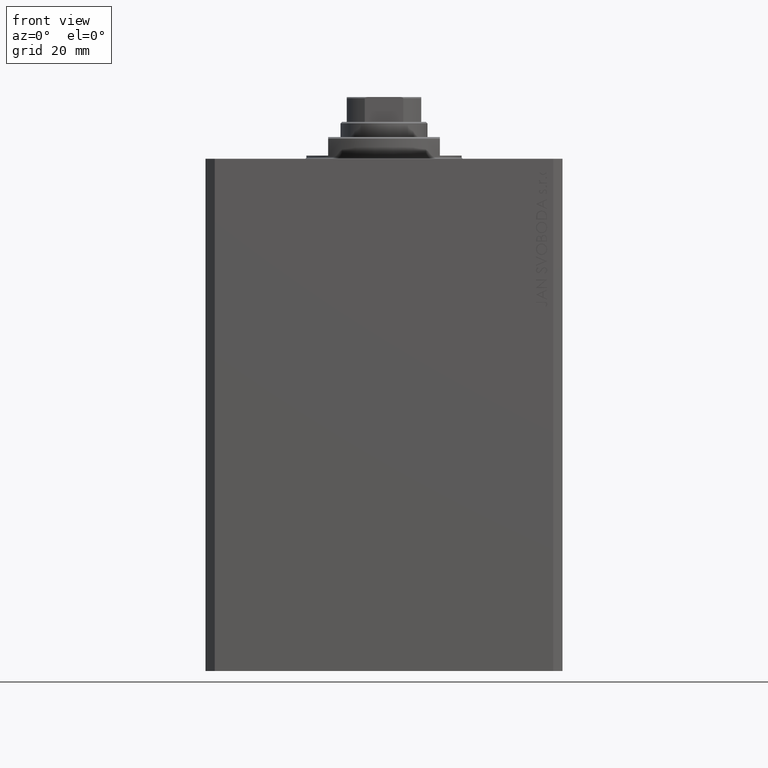
[diagram: clean part render]
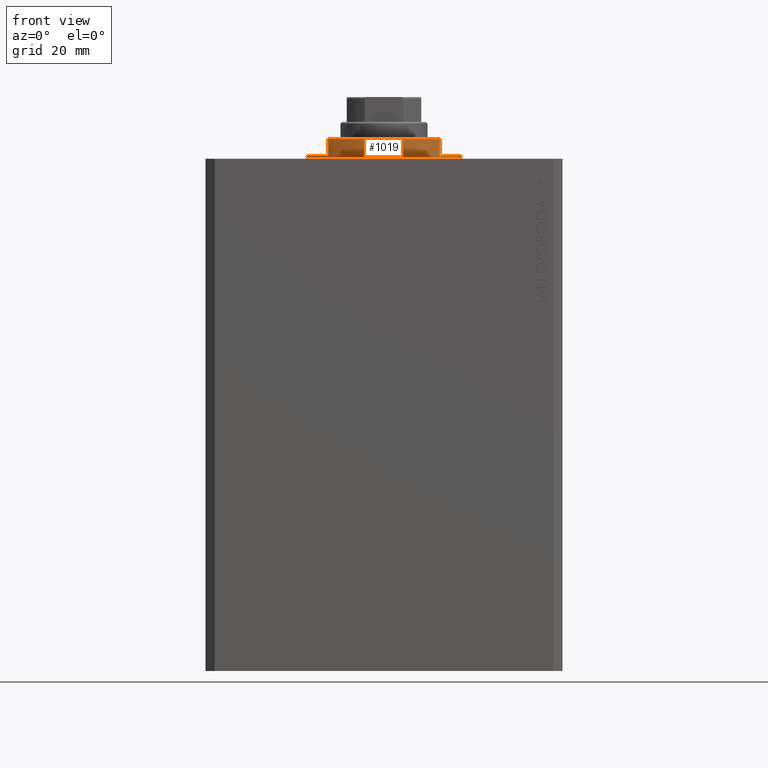
[diagram: same view with one face highlighted and labeled with its STEP entity id]
A machine part, front view. The second image highlights one B-rep face of the part: STEP entity #1019.
In plain terms, the highlighted cylindrical surface (partial cylindrical patch) has radius 25 mm, axis along (0, 0, -1).
Its self-contained STEP definition (entity closure, byte-faithful):
#1019 = ADVANCED_FACE ( 'NONE', ( #37521 ), #31422, .T. ) ;
#1195 = ORIENTED_EDGE ( 'NONE', *, *, #34353, .T. ) ;
#1302 = CARTESIAN_POINT ( 'NONE',  ( -25.00000000000000000, 3.061616997868383043E-15, -1.000000000000000000 ) ) ;
#1505 = EDGE_CURVE ( 'NONE', #3147, #43017, #9486, .T. ) ;
#2067 = CIRCLE ( 'NONE', #32945, 25.00000000000000000 ) ;
#2731 = EDGE_CURVE ( 'NONE', #43017, #40583, #29455, .T. ) ;
#2898 = VECTOR ( 'NONE', #29973, 1000.000000000000000 ) ;
#3119 = CARTESIAN_POINT ( 'NONE',  ( 0.000000000000000000, 0.000000000000000000, -7.000000000000000000 ) ) ;
#3147 = VERTEX_POINT ( 'NONE', #31932 ) ;
#3675 = CARTESIAN_POINT ( 'NONE',  ( 18.00000000000000000, -17.34935157289747920, -6.499999999999971578 ) ) ;
#4186 = VERTEX_POINT ( 'NONE', #1302 ) ;
#5392 = ORIENTED_EDGE ( 'NONE', *, *, #39685, .F. ) ;
#7151 = VERTEX_POINT ( 'NONE', #17165 ) ;
#7567 = CARTESIAN_POINT ( 'NONE',  ( 0.000000000000000000, 0.000000000000000000, -0.4999999999999995559 ) ) ;
#7953 = LINE ( 'NONE', #33130, #2898 ) ;
#9267 = DIRECTION ( 'NONE',  ( 0.000000000000000000, 0.000000000000000000, -1.000000000000000000 ) ) ;
#9486 = LINE ( 'NONE', #29722, #12177 ) ;
#9768 = DIRECTION ( 'NONE',  ( -0.000000000000000000, -0.000000000000000000, 1.000000000000000000 ) ) ;
#12007 = CARTESIAN_POINT ( 'NONE',  ( -18.00000000000000000, -17.34935157289747920, -6.499999999999969802 ) ) ;
#12177 = VECTOR ( 'NONE', #16436, 1000.000000000000000 ) ;
#14946 = AXIS2_PLACEMENT_3D ( 'NONE', #25689, #9267, #26358 ) ;
#16436 = DIRECTION ( 'NONE',  ( 0.000000000000000000, 0.000000000000000000, -1.000000000000000000 ) ) ;
#16502 = AXIS2_PLACEMENT_3D ( 'NONE', #40780, #36523, #23238 ) ;
#17165 = CARTESIAN_POINT ( 'NONE',  ( 25.00000000000000000, 0.000000000000000000, -0.4999999999999995559 ) ) ;
#17382 = LINE ( 'NONE', #44394, #28607 ) ;
#17804 = CARTESIAN_POINT ( 'NONE',  ( 0.000000000000000000, 0.000000000000000000, -6.499999999999971578 ) ) ;
#17883 = DIRECTION ( 'NONE',  ( 1.000000000000000000, 0.000000000000000000, 0.000000000000000000 ) ) ;
#18951 = ORIENTED_EDGE ( 'NONE', *, *, #32487, .F. ) ;
#19096 = ORIENTED_EDGE ( 'NONE', *, *, #1505, .T. ) ;
#21249 = VERTEX_POINT ( 'NONE', #42484 ) ;
#21260 = DIRECTION ( 'NONE',  ( -0.000000000000000000, -0.000000000000000000, -1.000000000000000000 ) ) ;
#21427 = ORIENTED_EDGE ( 'NONE', *, *, #26300, .F. ) ;
#22337 = VECTOR ( 'NONE', #34724, 1000.000000000000000 ) ;
#22953 = AXIS2_PLACEMENT_3D ( 'NONE', #3119, #38178, #31208 ) ;
#23238 = DIRECTION ( 'NONE',  ( -1.000000000000000000, 0.000000000000000000, 0.000000000000000000 ) ) ;
#23309 = ORIENTED_EDGE ( 'NONE', *, *, #41293, .T. ) ;
#24145 = LINE ( 'NONE', #31546, #22337 ) ;
#24266 = CIRCLE ( 'NONE', #14946, 25.00000000000000000 ) ;
#24346 = DIRECTION ( 'NONE',  ( -1.000000000000000000, 0.000000000000000000, 0.000000000000000000 ) ) ;
#25689 = CARTESIAN_POINT ( 'NONE',  ( 0.000000000000000000, 0.000000000000000000, -1.000000000000000000 ) ) ;
#25806 = ORIENTED_EDGE ( 'NONE', *, *, #2731, .T. ) ;
#25821 = CARTESIAN_POINT ( 'NONE',  ( -25.00000000000000000, 3.061616997868383043E-15, -0.4999999999999995559 ) ) ;
#26300 = EDGE_CURVE ( 'NONE', #21249, #36680, #42363, .T. ) ;
#26358 = DIRECTION ( 'NONE',  ( -1.000000000000000000, 0.000000000000000000, 0.000000000000000000 ) ) ;
#26960 = CARTESIAN_POINT ( 'NONE',  ( 18.00000000000000000, -17.34935157289747920, -1.000000000000000000 ) ) ;
#28607 = VECTOR ( 'NONE', #9768, 1000.000000000000000 ) ;
#28625 = ORIENTED_EDGE ( 'NONE', *, *, #39393, .F. ) ;
#29455 = CIRCLE ( 'NONE', #34501, 25.00000000000000000 ) ;
#29722 = CARTESIAN_POINT ( 'NONE',  ( -18.00000000000000000, -17.34935157289747920, -7.000000000000000000 ) ) ;
#29973 = DIRECTION ( 'NONE',  ( 0.000000000000000000, 0.000000000000000000, -1.000000000000000000 ) ) ;
#31208 = DIRECTION ( 'NONE',  ( 1.000000000000000000, 0.000000000000000000, 0.000000000000000000 ) ) ;
#31422 = CYLINDRICAL_SURFACE ( 'NONE', #22953, 25.00000000000000000 ) ;
#31535 = DIRECTION ( 'NONE',  ( 0.000000000000000000, 0.000000000000000000, 1.000000000000000000 ) ) ;
#31546 = CARTESIAN_POINT ( 'NONE',  ( 25.00000000000000000, 0.000000000000000000, -7.000000000000000000 ) ) ;
#31932 = CARTESIAN_POINT ( 'NONE',  ( -18.00000000000000000, -17.34935157289747920, -1.000000000000000000 ) ) ;
#32487 = EDGE_CURVE ( 'NONE', #36680, #40583, #7953, .T. ) ;
#32945 = AXIS2_PLACEMENT_3D ( 'NONE', #7567, #21260, #17883 ) ;
#33073 = VERTEX_POINT ( 'NONE', #25821 ) ;
#33130 = CARTESIAN_POINT ( 'NONE',  ( 18.00000000000000000, -17.34935157289747920, -7.000000000000000000 ) ) ;
#34353 = EDGE_CURVE ( 'NONE', #21249, #7151, #24145, .T. ) ;
#34501 = AXIS2_PLACEMENT_3D ( 'NONE', #17804, #31535, #24346 ) ;
#34724 = DIRECTION ( 'NONE',  ( -0.000000000000000000, -0.000000000000000000, 1.000000000000000000 ) ) ;
#36523 = DIRECTION ( 'NONE',  ( 0.000000000000000000, 0.000000000000000000, -1.000000000000000000 ) ) ;
#36680 = VERTEX_POINT ( 'NONE', #26960 ) ;
#37521 = FACE_OUTER_BOUND ( 'NONE', #41305, .T. ) ;
#38178 = DIRECTION ( 'NONE',  ( -0.000000000000000000, -0.000000000000000000, 1.000000000000000000 ) ) ;
#39393 = EDGE_CURVE ( 'NONE', #4186, #33073, #17382, .T. ) ;
#39685 = EDGE_CURVE ( 'NONE', #3147, #4186, #24266, .T. ) ;
#40583 = VERTEX_POINT ( 'NONE', #3675 ) ;
#40780 = CARTESIAN_POINT ( 'NONE',  ( 0.000000000000000000, 0.000000000000000000, -1.000000000000000000 ) ) ;
#41293 = EDGE_CURVE ( 'NONE', #7151, #33073, #2067, .T. ) ;
#41305 = EDGE_LOOP ( 'NONE', ( #28625, #5392, #19096, #25806, #18951, #21427, #1195, #23309 ) ) ;
#42363 = CIRCLE ( 'NONE', #16502, 25.00000000000000000 ) ;
#42484 = CARTESIAN_POINT ( 'NONE',  ( 25.00000000000000000, 0.000000000000000000, -1.000000000000000000 ) ) ;
#43017 = VERTEX_POINT ( 'NONE', #12007 ) ;
#44394 = CARTESIAN_POINT ( 'NONE',  ( -25.00000000000000000, 3.061616997868383043E-15, -7.000000000000000000 ) ) ;